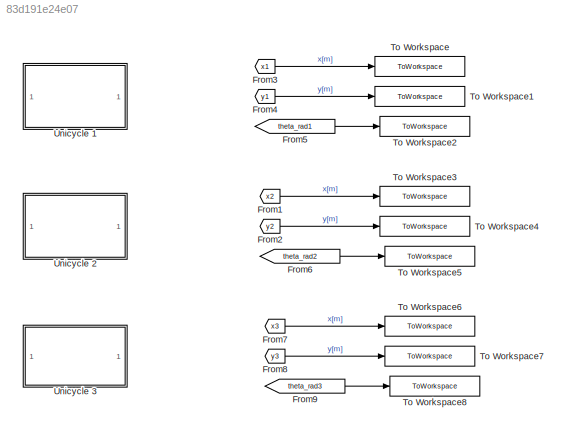
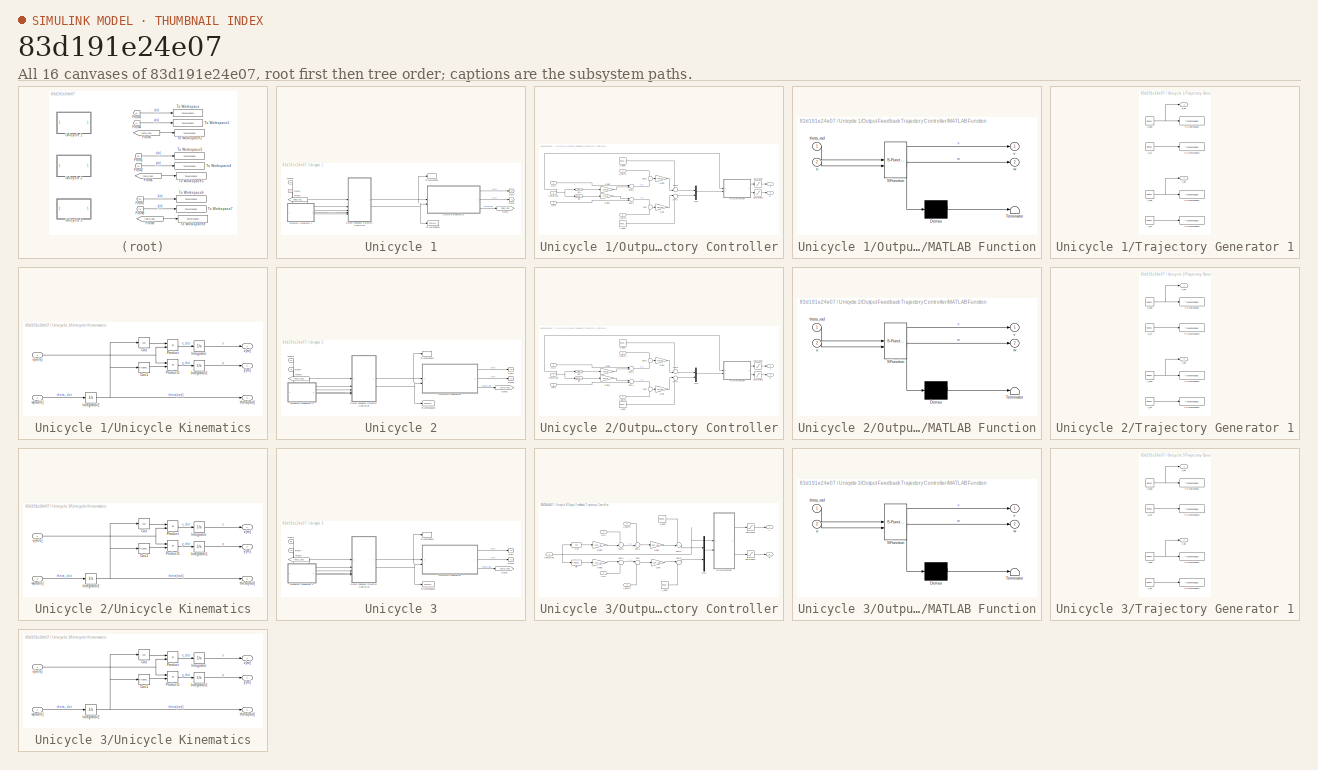
[diagram: thumbnail index - all 16 canvases of the model, root first then tree order]
MODEL slx_83d191e24e07
KIND model
CONFIG AbsTol = auto
CONFIG EnableMultiTasking = off
CONFIG FixedStep = 1e-3
CONFIG MaxStep = 1e-3
CONFIG MinStep = auto
CONFIG RelTol = 1e-3
CONFIG SampleTimeConstraint = Unconstrained
CONFIG SolverName = ode4
CONFIG StartTime = 0.0
CONFIG StopTime = 50
BLOCK [From] From1
  GotoTag = x2
  TagVisibility = global
BLOCK [From] From2
  GotoTag = y2
  TagVisibility = global
BLOCK [From] From3
  GotoTag = x1
  TagVisibility = global
BLOCK [From] From4
  GotoTag = y1
  TagVisibility = global
BLOCK [From] From5
  GotoTag = theta_rad1
  TagVisibility = global
BLOCK [From] From6
  GotoTag = theta_rad2
  TagVisibility = global
BLOCK [From] From7
  GotoTag = x3
  TagVisibility = global
BLOCK [From] From8
  GotoTag = y3
  TagVisibility = global
BLOCK [From] From9
  GotoTag = theta_rad3
  TagVisibility = global
BLOCK [ToWorkspace] To Workspace
  FixptAsFi = on
  MaxDataPoints = inf
  SampleTime = -1
  SaveFormat = Structure With Time
  VariableName = x1
BLOCK [ToWorkspace] To Workspace1
  FixptAsFi = on
  MaxDataPoints = inf
  SampleTime = -1
  SaveFormat = Structure With Time
  VariableName = y1
BLOCK [ToWorkspace] To Workspace2
  FixptAsFi = on
  MaxDataPoints = inf
  SampleTime = -1
  SaveFormat = Structure With Time
  VariableName = theta_rad1
BLOCK [ToWorkspace] To Workspace3
  FixptAsFi = on
  MaxDataPoints = inf
  SampleTime = -1
  SaveFormat = Structure With Time
  VariableName = x2
BLOCK [ToWorkspace] To Workspace4
  FixptAsFi = on
  MaxDataPoints = inf
  SampleTime = -1
  SaveFormat = Structure With Time
  VariableName = y2
BLOCK [ToWorkspace] To Workspace5
  FixptAsFi = on
  MaxDataPoints = inf
  SampleTime = -1
  SaveFormat = Structure With Time
  VariableName = theta_rad2
BLOCK [ToWorkspace] To Workspace6
  FixptAsFi = on
  MaxDataPoints = inf
  SampleTime = -1
  SaveFormat = Structure With Time
  VariableName = x3
BLOCK [ToWorkspace] To Workspace7
  FixptAsFi = on
  MaxDataPoints = inf
  SampleTime = -1
  SaveFormat = Structure With Time
  VariableName = y3
BLOCK [ToWorkspace] To Workspace8
  FixptAsFi = on
  MaxDataPoints = inf
  SampleTime = -1
  SaveFormat = Structure With Time
  VariableName = theta_rad3
BLOCK [SubSystem] Unicycle 1
BLOCK [From] Unicycle 1/From3
  GotoTag = x1
  TagVisibility = global
BLOCK [From] Unicycle 1/From4
  GotoTag = y1
  TagVisibility = global
BLOCK [From] Unicycle 1/From5
  GotoTag = theta_rad1
  TagVisibility = global
BLOCK [Goto] Unicycle 1/Goto
  GotoTag = x1
  TagVisibility = global
BLOCK [Goto] Unicycle 1/Goto1
  GotoTag = y1
  TagVisibility = global
BLOCK [Goto] Unicycle 1/Goto2
  GotoTag = theta_rad1
  TagVisibility = global
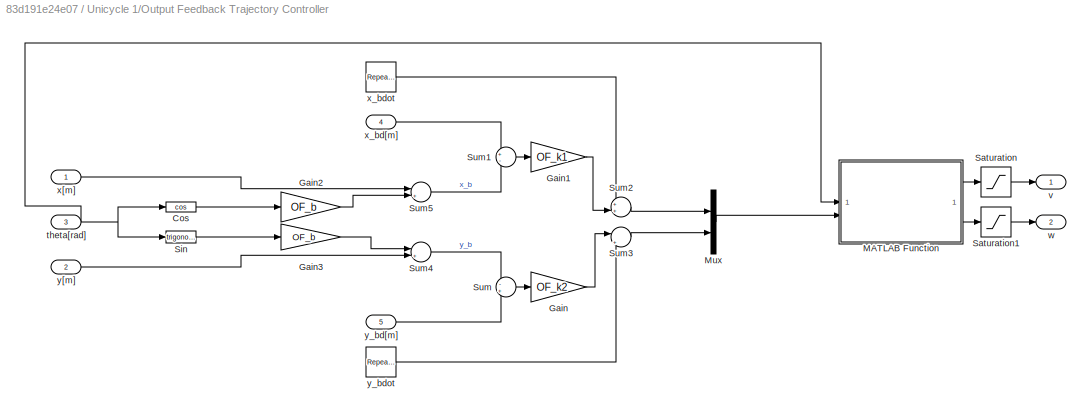
BLOCK [SubSystem] Unicycle 1/Output Feedback Trajectory Controller
BLOCK [Trigonometry] Unicycle 1/Output Feedback Trajectory Controller/Cos
  Operator = cos
BLOCK [Gain] Unicycle 1/Output Feedback Trajectory Controller/Gain
  Gain = OF_k2
BLOCK [Gain] Unicycle 1/Output Feedback Trajectory Controller/Gain1
  Gain = OF_k1
BLOCK [Gain] Unicycle 1/Output Feedback Trajectory Controller/Gain2
  Gain = OF_b
BLOCK [Gain] Unicycle 1/Output Feedback Trajectory Controller/Gain3
  Gain = OF_b
BLOCK [SubSystem] Unicycle 1/Output Feedback Trajectory Controller/MATLAB Function
  ErrorFcn = Stateflow.Translate.translate
  LibrarySourceBlock = simulink/User-Defined\nFunctions/MATLAB Function
  PermitHierarchicalResolution = ExplicitOnly
  SFBlockType = MATLAB Function
  TreatAsAtomicUnit = on
BLOCK [Demux] Unicycle 1/Output Feedback Trajectory Controller/MATLAB Function/ Demux 
  Outputs = 1
BLOCK [S-Function] Unicycle 1/Output Feedback Trajectory Controller/MATLAB Function/ SFunction 
  EnableBusSupport = on
  FunctionName = sf_sfun
  Parameters = OF_b
  PortCounts = [2 3]
  SFcnIsStateOwnerBlock = off
  SFunctionDeploymentMode = off
  Tag = Stateflow S-Function 2
BLOCK [Terminator] Unicycle 1/Output Feedback Trajectory Controller/MATLAB Function/ Terminator 
BLOCK [Inport] Unicycle 1/Output Feedback Trajectory Controller/MATLAB Function/theta_rad
BLOCK [Inport] Unicycle 1/Output Feedback Trajectory Controller/MATLAB Function/u
  Port = 2
BLOCK [Outport] Unicycle 1/Output Feedback Trajectory Controller/MATLAB Function/v
BLOCK [Outport] Unicycle 1/Output Feedback Trajectory Controller/MATLAB Function/w
  Port = 2
BLOCK [Mux] Unicycle 1/Output Feedback Trajectory Controller/Mux
  DisplayOption = bar
  Inputs = 2
BLOCK [Saturate] Unicycle 1/Output Feedback Trajectory Controller/Saturation
  LowerLimit = -v_sat
  UpperLimit = v_sat
BLOCK [Saturate] Unicycle 1/Output Feedback Trajectory Controller/Saturation1
  LowerLimit = -w_sat
  UpperLimit = w_sat
BLOCK [Trigonometry] Unicycle 1/Output Feedback Trajectory Controller/Sin
BLOCK [Sum] Unicycle 1/Output Feedback Trajectory Controller/Sum
  Inputs = -+
BLOCK [Sum] Unicycle 1/Output Feedback Trajectory Controller/Sum1
  Inputs = +-
BLOCK [Sum] Unicycle 1/Output Feedback Trajectory Controller/Sum2
  Inputs = ++||
BLOCK [Sum] Unicycle 1/Output Feedback Trajectory Controller/Sum3
  Inputs = ||++
BLOCK [Sum] Unicycle 1/Output Feedback Trajectory Controller/Sum4
  Inputs = |++|
BLOCK [Sum] Unicycle 1/Output Feedback Trajectory Controller/Sum5
  Inputs = |++|
BLOCK [Inport] Unicycle 1/Output Feedback Trajectory Controller/theta[rad]
  Port = 3
BLOCK [Outport] Unicycle 1/Output Feedback Trajectory Controller/v
BLOCK [Outport] Unicycle 1/Output Feedback Trajectory Controller/w
  Port = 2
BLOCK [Inport] Unicycle 1/Output Feedback Trajectory Controller/x[m]
BLOCK [Inport] Unicycle 1/Output Feedback Trajectory Controller/x_bd[m]
  Port = 4
BLOCK [Reference] Unicycle 1/Output Feedback Trajectory Controller/x_bdot  REF=simulink/Sources/Repeating
Sequence
  SourceBlock = simulink/Sources/Repeating\nSequence
  SourceType = Repeating table
BLOCK [Inport] Unicycle 1/Output Feedback Trajectory Controller/y[m]
  Port = 2
BLOCK [Inport] Unicycle 1/Output Feedback Trajectory Controller/y_bd[m]
  NameLocation = top
  Port = 5
BLOCK [Reference] Unicycle 1/Output Feedback Trajectory Controller/y_bdot  REF=simulink/Sources/Repeating
Sequence
  SourceBlock = simulink/Sources/Repeating\nSequence
  SourceType = Repeating table
BLOCK [ToWorkspace] Unicycle 1/To Workspace
  FixptAsFi = on
  MaxDataPoints = inf
  SampleTime = -1
  SaveFormat = Structure With Time
  VariableName = v1
BLOCK [ToWorkspace] Unicycle 1/To Workspace1
  FixptAsFi = on
  MaxDataPoints = inf
  SampleTime = -1
  SaveFormat = Structure With Time
  VariableName = w1
BLOCK [SubSystem] Unicycle 1/Trajectory Generator 1
BLOCK [ToWorkspace] Unicycle 1/Trajectory Generator 1/To Workspace
  FixptAsFi = on
  MaxDataPoints = inf
  SampleTime = -1
  SaveFormat = Structure With Time
  VariableName = x_bd1
BLOCK [ToWorkspace] Unicycle 1/Trajectory Generator 1/To Workspace1
  FixptAsFi = on
  MaxDataPoints = inf
  SampleTime = -1
  SaveFormat = Structure With Time
  VariableName = y_bd1
BLOCK [ToWorkspace] Unicycle 1/Trajectory Generator 1/To Workspace2
  FixptAsFi = on
  MaxDataPoints = inf
  SampleTime = -1
  SaveFormat = Structure With Time
  VariableName = y_d1
BLOCK [ToWorkspace] Unicycle 1/Trajectory Generator 1/To Workspace3
  FixptAsFi = on
  MaxDataPoints = inf
  SampleTime = -1
  SaveFormat = Structure With Time
  VariableName = x_d1
BLOCK [Outport] Unicycle 1/Trajectory Generator 1/x_bd
BLOCK [Reference] Unicycle 1/Trajectory Generator 1/x_bd1  REF=simulink/Sources/Repeating
Sequence
  SourceBlock = simulink/Sources/Repeating\nSequence
  SourceType = Repeating table
BLOCK [Reference] Unicycle 1/Trajectory Generator 1/x_d1  REF=simulink/Sources/Repeating
Sequence
  SourceBlock = simulink/Sources/Repeating\nSequence
  SourceType = Repeating table
BLOCK [Outport] Unicycle 1/Trajectory Generator 1/y_bd
  Port = 2
BLOCK [Reference] Unicycle 1/Trajectory Generator 1/y_bd1  REF=simulink/Sources/Repeating
Sequence
  SourceBlock = simulink/Sources/Repeating\nSequence
  SourceType = Repeating table
BLOCK [Reference] Unicycle 1/Trajectory Generator 1/y_d1  REF=simulink/Sources/Repeating
Sequence
  SourceBlock = simulink/Sources/Repeating\nSequence
  SourceType = Repeating table
BLOCK [SubSystem] Unicycle 1/Unicycle Kinematics
BLOCK [Trigonometry] Unicycle 1/Unicycle Kinematics/Cos
  Operator = cos
BLOCK [Trigonometry] Unicycle 1/Unicycle Kinematics/Cos1
BLOCK [Integrator] Unicycle 1/Unicycle Kinematics/Integrator
  InitialCondition = TT_x_init
BLOCK [Integrator] Unicycle 1/Unicycle Kinematics/Integrator1
  InitialCondition = TT_y_init
BLOCK [Integrator] Unicycle 1/Unicycle Kinematics/Integrator2
  InitialCondition = TT_theta1_init
BLOCK [Product] Unicycle 1/Unicycle Kinematics/Product
BLOCK [Product] Unicycle 1/Unicycle Kinematics/Product1
BLOCK [Outport] Unicycle 1/Unicycle Kinematics/theta[rad]
  Port = 3
BLOCK [Inport] Unicycle 1/Unicycle Kinematics/v[m//s]
BLOCK [Inport] Unicycle 1/Unicycle Kinematics/w[rad//s]
  Port = 2
BLOCK [Outport] Unicycle 1/Unicycle Kinematics/x[m]
BLOCK [Outport] Unicycle 1/Unicycle Kinematics/y[m]
  Port = 2
BLOCK [SubSystem] Unicycle 2
BLOCK [From] Unicycle 2/From3
  GotoTag = x2
  TagVisibility = global
BLOCK [From] Unicycle 2/From4
  GotoTag = y2
  TagVisibility = global
BLOCK [From] Unicycle 2/From5
  GotoTag = theta_rad2
  TagVisibility = global
BLOCK [Goto] Unicycle 2/Goto
  GotoTag = x2
  TagVisibility = global
BLOCK [Goto] Unicycle 2/Goto1
  GotoTag = y2
  TagVisibility = global
BLOCK [Goto] Unicycle 2/Goto2
  GotoTag = theta_rad2
  TagVisibility = global
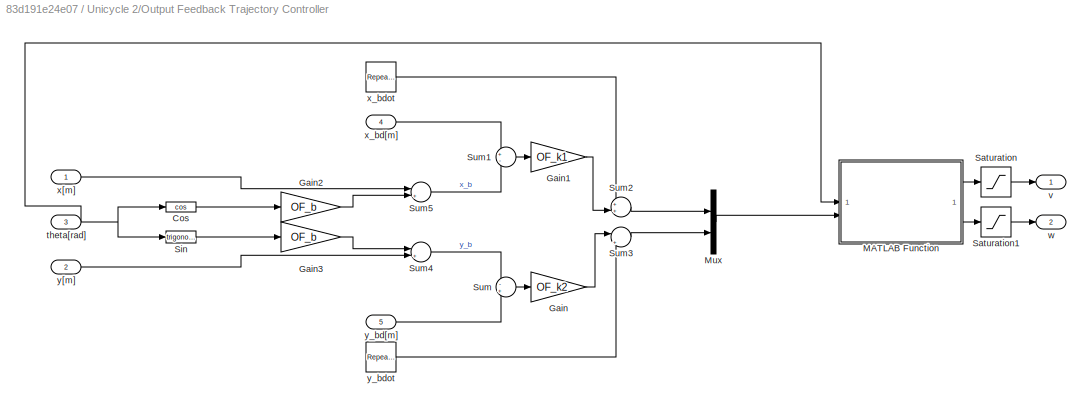
BLOCK [SubSystem] Unicycle 2/Output Feedback Trajectory Controller
BLOCK [Trigonometry] Unicycle 2/Output Feedback Trajectory Controller/Cos
  Operator = cos
BLOCK [Gain] Unicycle 2/Output Feedback Trajectory Controller/Gain
  Gain = OF_k2
BLOCK [Gain] Unicycle 2/Output Feedback Trajectory Controller/Gain1
  Gain = OF_k1
BLOCK [Gain] Unicycle 2/Output Feedback Trajectory Controller/Gain2
  Gain = OF_b
BLOCK [Gain] Unicycle 2/Output Feedback Trajectory Controller/Gain3
  Gain = OF_b
BLOCK [SubSystem] Unicycle 2/Output Feedback Trajectory Controller/MATLAB Function
  ErrorFcn = Stateflow.Translate.translate
  LibrarySourceBlock = simulink/User-Defined\nFunctions/MATLAB Function
  PermitHierarchicalResolution = ExplicitOnly
  SFBlockType = MATLAB Function
  TreatAsAtomicUnit = on
BLOCK [Demux] Unicycle 2/Output Feedback Trajectory Controller/MATLAB Function/ Demux 
  Outputs = 1
BLOCK [S-Function] Unicycle 2/Output Feedback Trajectory Controller/MATLAB Function/ SFunction 
  EnableBusSupport = on
  FunctionName = sf_sfun
  Parameters = OF_b
  PortCounts = [2 3]
  SFcnIsStateOwnerBlock = off
  SFunctionDeploymentMode = off
  Tag = Stateflow S-Function 1
BLOCK [Terminator] Unicycle 2/Output Feedback Trajectory Controller/MATLAB Function/ Terminator 
BLOCK [Inport] Unicycle 2/Output Feedback Trajectory Controller/MATLAB Function/theta_rad
BLOCK [Inport] Unicycle 2/Output Feedback Trajectory Controller/MATLAB Function/u
  Port = 2
BLOCK [Outport] Unicycle 2/Output Feedback Trajectory Controller/MATLAB Function/v
BLOCK [Outport] Unicycle 2/Output Feedback Trajectory Controller/MATLAB Function/w
  Port = 2
BLOCK [Mux] Unicycle 2/Output Feedback Trajectory Controller/Mux
  DisplayOption = bar
  Inputs = 2
BLOCK [Saturate] Unicycle 2/Output Feedback Trajectory Controller/Saturation
  LowerLimit = -v_sat
  UpperLimit = v_sat
BLOCK [Saturate] Unicycle 2/Output Feedback Trajectory Controller/Saturation1
  LowerLimit = -w_sat
  UpperLimit = w_sat
BLOCK [Trigonometry] Unicycle 2/Output Feedback Trajectory Controller/Sin
BLOCK [Sum] Unicycle 2/Output Feedback Trajectory Controller/Sum
  Inputs = -+
BLOCK [Sum] Unicycle 2/Output Feedback Trajectory Controller/Sum1
  Inputs = +-
BLOCK [Sum] Unicycle 2/Output Feedback Trajectory Controller/Sum2
  Inputs = ++||
BLOCK [Sum] Unicycle 2/Output Feedback Trajectory Controller/Sum3
  Inputs = ||++
BLOCK [Sum] Unicycle 2/Output Feedback Trajectory Controller/Sum4
  Inputs = |++|
BLOCK [Sum] Unicycle 2/Output Feedback Trajectory Controller/Sum5
  Inputs = |++|
BLOCK [Inport] Unicycle 2/Output Feedback Trajectory Controller/theta[rad]
  Port = 3
BLOCK [Outport] Unicycle 2/Output Feedback Trajectory Controller/v
BLOCK [Outport] Unicycle 2/Output Feedback Trajectory Controller/w
  Port = 2
BLOCK [Inport] Unicycle 2/Output Feedback Trajectory Controller/x[m]
BLOCK [Inport] Unicycle 2/Output Feedback Trajectory Controller/x_bd[m]
  Port = 4
BLOCK [Reference] Unicycle 2/Output Feedback Trajectory Controller/x_bdot  REF=simulink/Sources/Repeating
Sequence
  SourceBlock = simulink/Sources/Repeating\nSequence
  SourceType = Repeating table
BLOCK [Inport] Unicycle 2/Output Feedback Trajectory Controller/y[m]
  Port = 2
BLOCK [Inport] Unicycle 2/Output Feedback Trajectory Controller/y_bd[m]
  NameLocation = top
  Port = 5
BLOCK [Reference] Unicycle 2/Output Feedback Trajectory Controller/y_bdot  REF=simulink/Sources/Repeating
Sequence
  SourceBlock = simulink/Sources/Repeating\nSequence
  SourceType = Repeating table
BLOCK [ToWorkspace] Unicycle 2/To Workspace
  FixptAsFi = on
  MaxDataPoints = inf
  SampleTime = -1
  SaveFormat = Structure With Time
  VariableName = v2
BLOCK [ToWorkspace] Unicycle 2/To Workspace1
  FixptAsFi = on
  MaxDataPoints = inf
  SampleTime = -1
  SaveFormat = Structure With Time
  VariableName = w2
BLOCK [SubSystem] Unicycle 2/Trajectory Generator 1
BLOCK [ToWorkspace] Unicycle 2/Trajectory Generator 1/To Workspace
  FixptAsFi = on
  MaxDataPoints = inf
  SampleTime = -1
  SaveFormat = Structure With Time
  VariableName = x_bd2
BLOCK [ToWorkspace] Unicycle 2/Trajectory Generator 1/To Workspace1
  FixptAsFi = on
  MaxDataPoints = inf
  SampleTime = -1
  SaveFormat = Structure With Time
  VariableName = y_bd2
BLOCK [ToWorkspace] Unicycle 2/Trajectory Generator 1/To Workspace2
  FixptAsFi = on
  MaxDataPoints = inf
  SampleTime = -1
  SaveFormat = Structure With Time
  VariableName = y_d2
BLOCK [ToWorkspace] Unicycle 2/Trajectory Generator 1/To Workspace3
  FixptAsFi = on
  MaxDataPoints = inf
  SampleTime = -1
  SaveFormat = Structure With Time
  VariableName = x_d2
BLOCK [Outport] Unicycle 2/Trajectory Generator 1/x_bd
BLOCK [Reference] Unicycle 2/Trajectory Generator 1/x_bd2  REF=simulink/Sources/Repeating
Sequence
  SourceBlock = simulink/Sources/Repeating\nSequence
  SourceType = Repeating table
BLOCK [Reference] Unicycle 2/Trajectory Generator 1/x_d2  REF=simulink/Sources/Repeating
Sequence
  SourceBlock = simulink/Sources/Repeating\nSequence
  SourceType = Repeating table
BLOCK [Outport] Unicycle 2/Trajectory Generator 1/y_bd
  Port = 2
BLOCK [Reference] Unicycle 2/Trajectory Generator 1/y_bd2  REF=simulink/Sources/Repeating
Sequence
  SourceBlock = simulink/Sources/Repeating\nSequence
  SourceType = Repeating table
BLOCK [Reference] Unicycle 2/Trajectory Generator 1/y_d2  REF=simulink/Sources/Repeating
Sequence
  SourceBlock = simulink/Sources/Repeating\nSequence
  SourceType = Repeating table
BLOCK [SubSystem] Unicycle 2/Unicycle Kinematics
BLOCK [Trigonometry] Unicycle 2/Unicycle Kinematics/Cos
  Operator = cos
BLOCK [Trigonometry] Unicycle 2/Unicycle Kinematics/Cos1
BLOCK [Integrator] Unicycle 2/Unicycle Kinematics/Integrator
  InitialCondition = TT_x_init
BLOCK [Integrator] Unicycle 2/Unicycle Kinematics/Integrator1
  InitialCondition = TT_y_init
BLOCK [Integrator] Unicycle 2/Unicycle Kinematics/Integrator2
  InitialCondition = TT_theta2_init
BLOCK [Product] Unicycle 2/Unicycle Kinematics/Product
BLOCK [Product] Unicycle 2/Unicycle Kinematics/Product1
BLOCK [Outport] Unicycle 2/Unicycle Kinematics/theta[rad]
  Port = 3
BLOCK [Inport] Unicycle 2/Unicycle Kinematics/v[m//s]
BLOCK [Inport] Unicycle 2/Unicycle Kinematics/w[rad//s]
  Port = 2
BLOCK [Outport] Unicycle 2/Unicycle Kinematics/x[m]
BLOCK [Outport] Unicycle 2/Unicycle Kinematics/y[m]
  Port = 2
BLOCK [SubSystem] Unicycle 3
BLOCK [From] Unicycle 3/From3
  GotoTag = x3
  TagVisibility = global
BLOCK [From] Unicycle 3/From4
  GotoTag = y3
  TagVisibility = global
BLOCK [From] Unicycle 3/From5
  GotoTag = theta_rad3
  TagVisibility = global
BLOCK [Goto] Unicycle 3/Goto
  GotoTag = x3
  TagVisibility = global
BLOCK [Goto] Unicycle 3/Goto1
  GotoTag = y3
  TagVisibility = global
BLOCK [Goto] Unicycle 3/Goto2
  GotoTag = theta_rad3
  TagVisibility = global
BLOCK [SubSystem] Unicycle 3/Output Feedback Trajectory Controller
BLOCK [Trigonometry] Unicycle 3/Output Feedback Trajectory Controller/Cos
  Operator = cos
BLOCK [Gain] Unicycle 3/Output Feedback Trajectory Controller/Gain
  Gain = OF_k2
BLOCK [Gain] Unicycle 3/Output Feedback Trajectory Controller/Gain1
  Gain = OF_k1
BLOCK [Gain] Unicycle 3/Output Feedback Trajectory Controller/Gain2
  Gain = OF_b
BLOCK [Gain] Unicycle 3/Output Feedback Trajectory Controller/Gain3
  Gain = OF_b
BLOCK [SubSystem] Unicycle 3/Output Feedback Trajectory Controller/MATLAB Function
  ErrorFcn = Stateflow.Translate.translate
  LibrarySourceBlock = simulink/User-Defined\nFunctions/MATLAB Function
  PermitHierarchicalResolution = ExplicitOnly
  SFBlockType = MATLAB Function
  TreatAsAtomicUnit = on
BLOCK [Demux] Unicycle 3/Output Feedback Trajectory Controller/MATLAB Function/ Demux 
  Outputs = 1
BLOCK [S-Function] Unicycle 3/Output Feedback Trajectory Controller/MATLAB Function/ SFunction 
  EnableBusSupport = on
  FunctionName = sf_sfun
  Parameters = OF_b
  PortCounts = [2 3]
  SFcnIsStateOwnerBlock = off
  SFunctionDeploymentMode = off
  Tag = Stateflow S-Function 3
BLOCK [Terminator] Unicycle 3/Output Feedback Trajectory Controller/MATLAB Function/ Terminator 
BLOCK [Inport] Unicycle 3/Output Feedback Trajectory Controller/MATLAB Function/theta_rad
BLOCK [Inport] Unicycle 3/Output Feedback Trajectory Controller/MATLAB Function/u
  Port = 2
BLOCK [Outport] Unicycle 3/Output Feedback Trajectory Controller/MATLAB Function/v
BLOCK [Outport] Unicycle 3/Output Feedback Trajectory Controller/MATLAB Function/w
  Port = 2
BLOCK [Mux] Unicycle 3/Output Feedback Trajectory Controller/Mux
  DisplayOption = bar
  Inputs = 2
BLOCK [Saturate] Unicycle 3/Output Feedback Trajectory Controller/Saturation
  LowerLimit = -v_sat
  UpperLimit = v_sat
BLOCK [Saturate] Unicycle 3/Output Feedback Trajectory Controller/Saturation1
  LowerLimit = -w_sat
  UpperLimit = w_sat
BLOCK [Trigonometry] Unicycle 3/Output Feedback Trajectory Controller/Sin
BLOCK [Sum] Unicycle 3/Output Feedback Trajectory Controller/Sum
  Inputs = |-+
BLOCK [Sum] Unicycle 3/Output Feedback Trajectory Controller/Sum1
  Inputs = +-|
BLOCK [Sum] Unicycle 3/Output Feedback Trajectory Controller/Sum2
  Inputs = ++|
BLOCK [Sum] Unicycle 3/Output Feedback Trajectory Controller/Sum3
  Inputs = |++
BLOCK [Sum] Unicycle 3/Output Feedback Trajectory Controller/Sum4
  Inputs = |++
BLOCK [Sum] Unicycle 3/Output Feedback Trajectory Controller/Sum5
  Inputs = ++|
BLOCK [Inport] Unicycle 3/Output Feedback Trajectory Controller/theta[rad]
  Port = 3
BLOCK [Outport] Unicycle 3/Output Feedback Trajectory Controller/v
BLOCK [Outport] Unicycle 3/Output Feedback Trajectory Controller/w
  Port = 2
BLOCK [Inport] Unicycle 3/Output Feedback Trajectory Controller/x[m]
BLOCK [Inport] Unicycle 3/Output Feedback Trajectory Controller/x_bd[m]
  Port = 4
BLOCK [Reference] Unicycle 3/Output Feedback Trajectory Controller/x_bdot  REF=simulink/Sources/Repeating
Sequence
  SourceBlock = simulink/Sources/Repeating\nSequence
  SourceType = Repeating table
BLOCK [Inport] Unicycle 3/Output Feedback Trajectory Controller/y[m]
  Port = 2
BLOCK [Inport] Unicycle 3/Output Feedback Trajectory Controller/y_bd[m]
  NameLocation = top
  Port = 5
BLOCK [Reference] Unicycle 3/Output Feedback Trajectory Controller/y_bdot  REF=simulink/Sources/Repeating
Sequence
  SourceBlock = simulink/Sources/Repeating\nSequence
  SourceType = Repeating table
BLOCK [ToWorkspace] Unicycle 3/To Workspace
  FixptAsFi = on
  MaxDataPoints = inf
  SampleTime = -1
  SaveFormat = Structure With Time
  VariableName = v3
BLOCK [ToWorkspace] Unicycle 3/To Workspace1
  FixptAsFi = on
  MaxDataPoints = inf
  SampleTime = -1
  SaveFormat = Structure With Time
  VariableName = w3
BLOCK [SubSystem] Unicycle 3/Trajectory Generator 1
BLOCK [ToWorkspace] Unicycle 3/Trajectory Generator 1/To Workspace
  FixptAsFi = on
  MaxDataPoints = inf
  SampleTime = -1
  SaveFormat = Structure With Time
  VariableName = x_bd3
BLOCK [ToWorkspace] Unicycle 3/Trajectory Generator 1/To Workspace1
  FixptAsFi = on
  MaxDataPoints = inf
  SampleTime = -1
  SaveFormat = Structure With Time
  VariableName = y_bd3
BLOCK [ToWorkspace] Unicycle 3/Trajectory Generator 1/To Workspace2
  FixptAsFi = on
  MaxDataPoints = inf
  SampleTime = -1
  SaveFormat = Structure With Time
  VariableName = y_d3
BLOCK [ToWorkspace] Unicycle 3/Trajectory Generator 1/To Workspace3
  FixptAsFi = on
  MaxDataPoints = inf
  SampleTime = -1
  SaveFormat = Structure With Time
  VariableName = x_d3
BLOCK [Outport] Unicycle 3/Trajectory Generator 1/x_bd
BLOCK [Reference] Unicycle 3/Trajectory Generator 1/x_bd3  REF=simulink/Sources/Repeating
Sequence
  SourceBlock = simulink/Sources/Repeating\nSequence
  SourceType = Repeating table
BLOCK [Reference] Unicycle 3/Trajectory Generator 1/x_d3  REF=simulink/Sources/Repeating
Sequence
  SourceBlock = simulink/Sources/Repeating\nSequence
  SourceType = Repeating table
BLOCK [Outport] Unicycle 3/Trajectory Generator 1/y_bd
  Port = 2
BLOCK [Reference] Unicycle 3/Trajectory Generator 1/y_bd3  REF=simulink/Sources/Repeating
Sequence
  SourceBlock = simulink/Sources/Repeating\nSequence
  SourceType = Repeating table
BLOCK [Reference] Unicycle 3/Trajectory Generator 1/y_d3  REF=simulink/Sources/Repeating
Sequence
  SourceBlock = simulink/Sources/Repeating\nSequence
  SourceType = Repeating table
BLOCK [SubSystem] Unicycle 3/Unicycle Kinematics
BLOCK [Trigonometry] Unicycle 3/Unicycle Kinematics/Cos
  Operator = cos
BLOCK [Trigonometry] Unicycle 3/Unicycle Kinematics/Cos1
BLOCK [Integrator] Unicycle 3/Unicycle Kinematics/Integrator
  InitialCondition = TT_x_init
BLOCK [Integrator] Unicycle 3/Unicycle Kinematics/Integrator1
  InitialCondition = TT_y_init
BLOCK [Integrator] Unicycle 3/Unicycle Kinematics/Integrator2
  InitialCondition = TT_theta3_init
BLOCK [Product] Unicycle 3/Unicycle Kinematics/Product
BLOCK [Product] Unicycle 3/Unicycle Kinematics/Product1
BLOCK [Outport] Unicycle 3/Unicycle Kinematics/theta[rad]
  Port = 3
BLOCK [Inport] Unicycle 3/Unicycle Kinematics/v[m//s]
BLOCK [Inport] Unicycle 3/Unicycle Kinematics/w[rad//s]
  Port = 2
BLOCK [Outport] Unicycle 3/Unicycle Kinematics/x[m]
BLOCK [Outport] Unicycle 3/Unicycle Kinematics/y[m]
  Port = 2
LINE From1:1 -> To Workspace3:1
LINE From2:1 -> To Workspace4:1
LINE From3:1 -> To Workspace:1
LINE From4:1 -> To Workspace1:1
LINE From5:1 -> To Workspace2:1
LINE From6:1 -> To Workspace5:1
LINE From7:1 -> To Workspace6:1
LINE From8:1 -> To Workspace7:1
LINE From9:1 -> To Workspace8:1
LINE Unicycle 1/From3:1 -> Unicycle 1/Output Feedback Trajectory Controller:1
LINE Unicycle 1/From4:1 -> Unicycle 1/Output Feedback Trajectory Controller:2
LINE Unicycle 1/From5:1 -> Unicycle 1/Output Feedback Trajectory Controller:3
LINE Unicycle 1/Output Feedback Trajectory Controller/Cos:1 -> Unicycle 1/Output Feedback Trajectory Controller/Gain2:1
LINE Unicycle 1/Output Feedback Trajectory Controller/Gain1:1 -> Unicycle 1/Output Feedback Trajectory Controller/Sum2:2
LINE Unicycle 1/Output Feedback Trajectory Controller/Gain2:1 -> Unicycle 1/Output Feedback Trajectory Controller/Sum5:2
LINE Unicycle 1/Output Feedback Trajectory Controller/Gain3:1 -> Unicycle 1/Output Feedback Trajectory Controller/Sum4:1
LINE Unicycle 1/Output Feedback Trajectory Controller/Gain:1 -> Unicycle 1/Output Feedback Trajectory Controller/Sum3:1
LINE Unicycle 1/Output Feedback Trajectory Controller/MATLAB Function:1 -> Unicycle 1/Output Feedback Trajectory Controller/Saturation:1
LINE Unicycle 1/Output Feedback Trajectory Controller/MATLAB Function:2 -> Unicycle 1/Output Feedback Trajectory Controller/Saturation1:1
LINE Unicycle 1/Output Feedback Trajectory Controller/Mux:1 -> Unicycle 1/Output Feedback Trajectory Controller/MATLAB Function:2
LINE Unicycle 1/Output Feedback Trajectory Controller/Saturation1:1 -> Unicycle 1/Output Feedback Trajectory Controller/w:1
LINE Unicycle 1/Output Feedback Trajectory Controller/Saturation:1 -> Unicycle 1/Output Feedback Trajectory Controller/v:1
LINE Unicycle 1/Output Feedback Trajectory Controller/Sin:1 -> Unicycle 1/Output Feedback Trajectory Controller/Gain3:1
LINE Unicycle 1/Output Feedback Trajectory Controller/Sum1:1 -> Unicycle 1/Output Feedback Trajectory Controller/Gain1:1
LINE Unicycle 1/Output Feedback Trajectory Controller/Sum2:1 -> Unicycle 1/Output Feedback Trajectory Controller/Mux:1
LINE Unicycle 1/Output Feedback Trajectory Controller/Sum3:1 -> Unicycle 1/Output Feedback Trajectory Controller/Mux:2
LINE Unicycle 1/Output Feedback Trajectory Controller/Sum4:1 -> Unicycle 1/Output Feedback Trajectory Controller/Sum:1
LINE Unicycle 1/Output Feedback Trajectory Controller/Sum5:1 -> Unicycle 1/Output Feedback Trajectory Controller/Sum1:2
LINE Unicycle 1/Output Feedback Trajectory Controller/Sum:1 -> Unicycle 1/Output Feedback Trajectory Controller/Gain:1
NET Unicycle 1/Output Feedback Trajectory Controller/theta[rad]:1 -> Unicycle 1/Output Feedback Trajectory Controller/Cos:1, Unicycle 1/Output Feedback Trajectory Controller/MATLAB Function:1, Unicycle 1/Output Feedback Trajectory Controller/Sin:1
LINE Unicycle 1/Output Feedback Trajectory Controller/x[m]:1 -> Unicycle 1/Output Feedback Trajectory Controller/Sum5:1
LINE Unicycle 1/Output Feedback Trajectory Controller/x_bd[m]:1 -> Unicycle 1/Output Feedback Trajectory Controller/Sum1:1
LINE Unicycle 1/Output Feedback Trajectory Controller/x_bdot:1 -> Unicycle 1/Output Feedback Trajectory Controller/Sum2:1
LINE Unicycle 1/Output Feedback Trajectory Controller/y[m]:1 -> Unicycle 1/Output Feedback Trajectory Controller/Sum4:2
LINE Unicycle 1/Output Feedback Trajectory Controller/y_bd[m]:1 -> Unicycle 1/Output Feedback Trajectory Controller/Sum:2
LINE Unicycle 1/Output Feedback Trajectory Controller/y_bdot:1 -> Unicycle 1/Output Feedback Trajectory Controller/Sum3:2
NET Unicycle 1/Output Feedback Trajectory Controller:1 -> Unicycle 1/To Workspace:1, Unicycle 1/Unicycle Kinematics:1
NET Unicycle 1/Output Feedback Trajectory Controller:2 -> Unicycle 1/To Workspace1:1, Unicycle 1/Unicycle Kinematics:2
NET Unicycle 1/Trajectory Generator 1/x_bd1:1 -> Unicycle 1/Trajectory Generator 1/To Workspace:1, Unicycle 1/Trajectory Generator 1/x_bd:1
LINE Unicycle 1/Trajectory Generator 1/x_d1:1 -> Unicycle 1/Trajectory Generator 1/To Workspace3:1
NET Unicycle 1/Trajectory Generator 1/y_bd1:1 -> Unicycle 1/Trajectory Generator 1/To Workspace1:1, Unicycle 1/Trajectory Generator 1/y_bd:1
LINE Unicycle 1/Trajectory Generator 1/y_d1:1 -> Unicycle 1/Trajectory Generator 1/To Workspace2:1
LINE Unicycle 1/Trajectory Generator 1:1 -> Unicycle 1/Output Feedback Trajectory Controller:4
LINE Unicycle 1/Trajectory Generator 1:2 -> Unicycle 1/Output Feedback Trajectory Controller:5
LINE Unicycle 1/Unicycle Kinematics/Cos1:1 -> Unicycle 1/Unicycle Kinematics/Product1:2
LINE Unicycle 1/Unicycle Kinematics/Cos:1 -> Unicycle 1/Unicycle Kinematics/Product:1
LINE Unicycle 1/Unicycle Kinematics/Integrator1:1 -> Unicycle 1/Unicycle Kinematics/y[m]:1
NET Unicycle 1/Unicycle Kinematics/Integrator2:1 -> Unicycle 1/Unicycle Kinematics/Cos1:1, Unicycle 1/Unicycle Kinematics/Cos:1, Unicycle 1/Unicycle Kinematics/theta[rad]:1
LINE Unicycle 1/Unicycle Kinematics/Integrator:1 -> Unicycle 1/Unicycle Kinematics/x[m]:1
LINE Unicycle 1/Unicycle Kinematics/Product1:1 -> Unicycle 1/Unicycle Kinematics/Integrator1:1
LINE Unicycle 1/Unicycle Kinematics/Product:1 -> Unicycle 1/Unicycle Kinematics/Integrator:1
NET Unicycle 1/Unicycle Kinematics/v[m//s]:1 -> Unicycle 1/Unicycle Kinematics/Product1:1, Unicycle 1/Unicycle Kinematics/Product:2
LINE Unicycle 1/Unicycle Kinematics/w[rad//s]:1 -> Unicycle 1/Unicycle Kinematics/Integrator2:1
LINE Unicycle 1/Unicycle Kinematics:1 -> Unicycle 1/Goto:1
LINE Unicycle 1/Unicycle Kinematics:2 -> Unicycle 1/Goto1:1
LINE Unicycle 1/Unicycle Kinematics:3 -> Unicycle 1/Goto2:1
LINE Unicycle 2/From3:1 -> Unicycle 2/Output Feedback Trajectory Controller:1
LINE Unicycle 2/From4:1 -> Unicycle 2/Output Feedback Trajectory Controller:2
LINE Unicycle 2/From5:1 -> Unicycle 2/Output Feedback Trajectory Controller:3
LINE Unicycle 2/Output Feedback Trajectory Controller/Cos:1 -> Unicycle 2/Output Feedback Trajectory Controller/Gain2:1
LINE Unicycle 2/Output Feedback Trajectory Controller/Gain1:1 -> Unicycle 2/Output Feedback Trajectory Controller/Sum2:2
LINE Unicycle 2/Output Feedback Trajectory Controller/Gain2:1 -> Unicycle 2/Output Feedback Trajectory Controller/Sum5:2
LINE Unicycle 2/Output Feedback Trajectory Controller/Gain3:1 -> Unicycle 2/Output Feedback Trajectory Controller/Sum4:1
LINE Unicycle 2/Output Feedback Trajectory Controller/Gain:1 -> Unicycle 2/Output Feedback Trajectory Controller/Sum3:1
LINE Unicycle 2/Output Feedback Trajectory Controller/MATLAB Function:1 -> Unicycle 2/Output Feedback Trajectory Controller/Saturation:1
LINE Unicycle 2/Output Feedback Trajectory Controller/MATLAB Function:2 -> Unicycle 2/Output Feedback Trajectory Controller/Saturation1:1
LINE Unicycle 2/Output Feedback Trajectory Controller/Mux:1 -> Unicycle 2/Output Feedback Trajectory Controller/MATLAB Function:2
LINE Unicycle 2/Output Feedback Trajectory Controller/Saturation1:1 -> Unicycle 2/Output Feedback Trajectory Controller/w:1
LINE Unicycle 2/Output Feedback Trajectory Controller/Saturation:1 -> Unicycle 2/Output Feedback Trajectory Controller/v:1
LINE Unicycle 2/Output Feedback Trajectory Controller/Sin:1 -> Unicycle 2/Output Feedback Trajectory Controller/Gain3:1
LINE Unicycle 2/Output Feedback Trajectory Controller/Sum1:1 -> Unicycle 2/Output Feedback Trajectory Controller/Gain1:1
LINE Unicycle 2/Output Feedback Trajectory Controller/Sum2:1 -> Unicycle 2/Output Feedback Trajectory Controller/Mux:1
LINE Unicycle 2/Output Feedback Trajectory Controller/Sum3:1 -> Unicycle 2/Output Feedback Trajectory Controller/Mux:2
LINE Unicycle 2/Output Feedback Trajectory Controller/Sum4:1 -> Unicycle 2/Output Feedback Trajectory Controller/Sum:1
LINE Unicycle 2/Output Feedback Trajectory Controller/Sum5:1 -> Unicycle 2/Output Feedback Trajectory Controller/Sum1:2
LINE Unicycle 2/Output Feedback Trajectory Controller/Sum:1 -> Unicycle 2/Output Feedback Trajectory Controller/Gain:1
NET Unicycle 2/Output Feedback Trajectory Controller/theta[rad]:1 -> Unicycle 2/Output Feedback Trajectory Controller/Cos:1, Unicycle 2/Output Feedback Trajectory Controller/MATLAB Function:1, Unicycle 2/Output Feedback Trajectory Controller/Sin:1
LINE Unicycle 2/Output Feedback Trajectory Controller/x[m]:1 -> Unicycle 2/Output Feedback Trajectory Controller/Sum5:1
LINE Unicycle 2/Output Feedback Trajectory Controller/x_bd[m]:1 -> Unicycle 2/Output Feedback Trajectory Controller/Sum1:1
LINE Unicycle 2/Output Feedback Trajectory Controller/x_bdot:1 -> Unicycle 2/Output Feedback Trajectory Controller/Sum2:1
LINE Unicycle 2/Output Feedback Trajectory Controller/y[m]:1 -> Unicycle 2/Output Feedback Trajectory Controller/Sum4:2
LINE Unicycle 2/Output Feedback Trajectory Controller/y_bd[m]:1 -> Unicycle 2/Output Feedback Trajectory Controller/Sum:2
LINE Unicycle 2/Output Feedback Trajectory Controller/y_bdot:1 -> Unicycle 2/Output Feedback Trajectory Controller/Sum3:2
NET Unicycle 2/Output Feedback Trajectory Controller:1 -> Unicycle 2/To Workspace:1, Unicycle 2/Unicycle Kinematics:1
NET Unicycle 2/Output Feedback Trajectory Controller:2 -> Unicycle 2/To Workspace1:1, Unicycle 2/Unicycle Kinematics:2
NET Unicycle 2/Trajectory Generator 1/x_bd2:1 -> Unicycle 2/Trajectory Generator 1/To Workspace:1, Unicycle 2/Trajectory Generator 1/x_bd:1
LINE Unicycle 2/Trajectory Generator 1/x_d2:1 -> Unicycle 2/Trajectory Generator 1/To Workspace3:1
NET Unicycle 2/Trajectory Generator 1/y_bd2:1 -> Unicycle 2/Trajectory Generator 1/To Workspace1:1, Unicycle 2/Trajectory Generator 1/y_bd:1
LINE Unicycle 2/Trajectory Generator 1/y_d2:1 -> Unicycle 2/Trajectory Generator 1/To Workspace2:1
LINE Unicycle 2/Trajectory Generator 1:1 -> Unicycle 2/Output Feedback Trajectory Controller:4
LINE Unicycle 2/Trajectory Generator 1:2 -> Unicycle 2/Output Feedback Trajectory Controller:5
LINE Unicycle 2/Unicycle Kinematics/Cos1:1 -> Unicycle 2/Unicycle Kinematics/Product1:2
LINE Unicycle 2/Unicycle Kinematics/Cos:1 -> Unicycle 2/Unicycle Kinematics/Product:1
LINE Unicycle 2/Unicycle Kinematics/Integrator1:1 -> Unicycle 2/Unicycle Kinematics/y[m]:1
NET Unicycle 2/Unicycle Kinematics/Integrator2:1 -> Unicycle 2/Unicycle Kinematics/Cos1:1, Unicycle 2/Unicycle Kinematics/Cos:1, Unicycle 2/Unicycle Kinematics/theta[rad]:1
LINE Unicycle 2/Unicycle Kinematics/Integrator:1 -> Unicycle 2/Unicycle Kinematics/x[m]:1
LINE Unicycle 2/Unicycle Kinematics/Product1:1 -> Unicycle 2/Unicycle Kinematics/Integrator1:1
LINE Unicycle 2/Unicycle Kinematics/Product:1 -> Unicycle 2/Unicycle Kinematics/Integrator:1
NET Unicycle 2/Unicycle Kinematics/v[m//s]:1 -> Unicycle 2/Unicycle Kinematics/Product1:1, Unicycle 2/Unicycle Kinematics/Product:2
LINE Unicycle 2/Unicycle Kinematics/w[rad//s]:1 -> Unicycle 2/Unicycle Kinematics/Integrator2:1
LINE Unicycle 2/Unicycle Kinematics:1 -> Unicycle 2/Goto:1
LINE Unicycle 2/Unicycle Kinematics:2 -> Unicycle 2/Goto1:1
LINE Unicycle 2/Unicycle Kinematics:3 -> Unicycle 2/Goto2:1
LINE Unicycle 3/From3:1 -> Unicycle 3/Output Feedback Trajectory Controller:1
LINE Unicycle 3/From4:1 -> Unicycle 3/Output Feedback Trajectory Controller:2
LINE Unicycle 3/From5:1 -> Unicycle 3/Output Feedback Trajectory Controller:3
LINE Unicycle 3/Output Feedback Trajectory Controller/Cos:1 -> Unicycle 3/Output Feedback Trajectory Controller/Gain2:1
LINE Unicycle 3/Output Feedback Trajectory Controller/Gain1:1 -> Unicycle 3/Output Feedback Trajectory Controller/Sum2:2
LINE Unicycle 3/Output Feedback Trajectory Controller/Gain2:1 -> Unicycle 3/Output Feedback Trajectory Controller/Sum5:2
LINE Unicycle 3/Output Feedback Trajectory Controller/Gain3:1 -> Unicycle 3/Output Feedback Trajectory Controller/Sum4:1
LINE Unicycle 3/Output Feedback Trajectory Controller/Gain:1 -> Unicycle 3/Output Feedback Trajectory Controller/Sum3:1
LINE Unicycle 3/Output Feedback Trajectory Controller/MATLAB Function:1 -> Unicycle 3/Output Feedback Trajectory Controller/Saturation:1
LINE Unicycle 3/Output Feedback Trajectory Controller/MATLAB Function:2 -> Unicycle 3/Output Feedback Trajectory Controller/Saturation1:1
LINE Unicycle 3/Output Feedback Trajectory Controller/Mux:1 -> Unicycle 3/Output Feedback Trajectory Controller/MATLAB Function:2
LINE Unicycle 3/Output Feedback Trajectory Controller/Saturation1:1 -> Unicycle 3/Output Feedback Trajectory Controller/w:1
LINE Unicycle 3/Output Feedback Trajectory Controller/Saturation:1 -> Unicycle 3/Output Feedback Trajectory Controller/v:1
LINE Unicycle 3/Output Feedback Trajectory Controller/Sin:1 -> Unicycle 3/Output Feedback Trajectory Controller/Gain3:1
LINE Unicycle 3/Output Feedback Trajectory Controller/Sum1:1 -> Unicycle 3/Output Feedback Trajectory Controller/Gain1:1
LINE Unicycle 3/Output Feedback Trajectory Controller/Sum2:1 -> Unicycle 3/Output Feedback Trajectory Controller/Mux:1
LINE Unicycle 3/Output Feedback Trajectory Controller/Sum3:1 -> Unicycle 3/Output Feedback Trajectory Controller/Mux:2
LINE Unicycle 3/Output Feedback Trajectory Controller/Sum4:1 -> Unicycle 3/Output Feedback Trajectory Controller/Sum:1
LINE Unicycle 3/Output Feedback Trajectory Controller/Sum5:1 -> Unicycle 3/Output Feedback Trajectory Controller/Sum1:2
LINE Unicycle 3/Output Feedback Trajectory Controller/Sum:1 -> Unicycle 3/Output Feedback Trajectory Controller/Gain:1
NET Unicycle 3/Output Feedback Trajectory Controller/theta[rad]:1 -> Unicycle 3/Output Feedback Trajectory Controller/Cos:1, Unicycle 3/Output Feedback Trajectory Controller/MATLAB Function:1, Unicycle 3/Output Feedback Trajectory Controller/Sin:1
LINE Unicycle 3/Output Feedback Trajectory Controller/x[m]:1 -> Unicycle 3/Output Feedback Trajectory Controller/Sum5:1
LINE Unicycle 3/Output Feedback Trajectory Controller/x_bd[m]:1 -> Unicycle 3/Output Feedback Trajectory Controller/Sum1:1
LINE Unicycle 3/Output Feedback Trajectory Controller/x_bdot:1 -> Unicycle 3/Output Feedback Trajectory Controller/Sum2:1
LINE Unicycle 3/Output Feedback Trajectory Controller/y[m]:1 -> Unicycle 3/Output Feedback Trajectory Controller/Sum4:2
LINE Unicycle 3/Output Feedback Trajectory Controller/y_bd[m]:1 -> Unicycle 3/Output Feedback Trajectory Controller/Sum:2
LINE Unicycle 3/Output Feedback Trajectory Controller/y_bdot:1 -> Unicycle 3/Output Feedback Trajectory Controller/Sum3:2
NET Unicycle 3/Output Feedback Trajectory Controller:1 -> Unicycle 3/To Workspace:1, Unicycle 3/Unicycle Kinematics:1
NET Unicycle 3/Output Feedback Trajectory Controller:2 -> Unicycle 3/To Workspace1:1, Unicycle 3/Unicycle Kinematics:2
NET Unicycle 3/Trajectory Generator 1/x_bd3:1 -> Unicycle 3/Trajectory Generator 1/To Workspace:1, Unicycle 3/Trajectory Generator 1/x_bd:1
LINE Unicycle 3/Trajectory Generator 1/x_d3:1 -> Unicycle 3/Trajectory Generator 1/To Workspace3:1
NET Unicycle 3/Trajectory Generator 1/y_bd3:1 -> Unicycle 3/Trajectory Generator 1/To Workspace1:1, Unicycle 3/Trajectory Generator 1/y_bd:1
LINE Unicycle 3/Trajectory Generator 1/y_d3:1 -> Unicycle 3/Trajectory Generator 1/To Workspace2:1
LINE Unicycle 3/Trajectory Generator 1:1 -> Unicycle 3/Output Feedback Trajectory Controller:4
LINE Unicycle 3/Trajectory Generator 1:2 -> Unicycle 3/Output Feedback Trajectory Controller:5
LINE Unicycle 3/Unicycle Kinematics/Cos1:1 -> Unicycle 3/Unicycle Kinematics/Product1:2
LINE Unicycle 3/Unicycle Kinematics/Cos:1 -> Unicycle 3/Unicycle Kinematics/Product:1
LINE Unicycle 3/Unicycle Kinematics/Integrator1:1 -> Unicycle 3/Unicycle Kinematics/y[m]:1
NET Unicycle 3/Unicycle Kinematics/Integrator2:1 -> Unicycle 3/Unicycle Kinematics/Cos1:1, Unicycle 3/Unicycle Kinematics/Cos:1, Unicycle 3/Unicycle Kinematics/theta[rad]:1
LINE Unicycle 3/Unicycle Kinematics/Integrator:1 -> Unicycle 3/Unicycle Kinematics/x[m]:1
LINE Unicycle 3/Unicycle Kinematics/Product1:1 -> Unicycle 3/Unicycle Kinematics/Integrator1:1
LINE Unicycle 3/Unicycle Kinematics/Product:1 -> Unicycle 3/Unicycle Kinematics/Integrator:1
NET Unicycle 3/Unicycle Kinematics/v[m//s]:1 -> Unicycle 3/Unicycle Kinematics/Product1:1, Unicycle 3/Unicycle Kinematics/Product:2
LINE Unicycle 3/Unicycle Kinematics/w[rad//s]:1 -> Unicycle 3/Unicycle Kinematics/Integrator2:1
LINE Unicycle 3/Unicycle Kinematics:1 -> Unicycle 3/Goto:1
LINE Unicycle 3/Unicycle Kinematics:2 -> Unicycle 3/Goto1:1
LINE Unicycle 3/Unicycle Kinematics:3 -> Unicycle 3/Goto2:1
note: NET lines group one-source signal fan-out (src -> all destinations, sorted); 1:1 wires keep LINE
CHART Unicycle 2/Output Feedback Trajectory Controller/MATLAB Function states=1 transitions=1
  STATE_LABEL 'eML_blk_kernel()'
  STATE_LABEL 'SCRIPT:\nfunction [v,w] = fcn(theta_rad, u, OF_b)\n\n\nT_inv=[cos(theta_rad)       sin(theta_rad);\n       -sin(theta_rad)/OF_b    cos(theta_rad)/OF_b];\n\nin=T_inv*u;\n\nv = in(1);\nw= in(2);\n'  <repeated x3 — deduplicated; at blocks: MATLAB Function>
CHART Unicycle 1/Output Feedback Trajectory Controller/MATLAB Function states=1 transitions=1
  STATE_LABEL 'eML_blk_kernel()'
CHART Unicycle 3/Output Feedback Trajectory Controller/MATLAB Function states=1 transitions=1
  STATE_LABEL 'eML_blk_kernel()'
CHART  states=0 transitions=0
CHART  states=0 transitions=0
CHART  states=0 transitions=0
